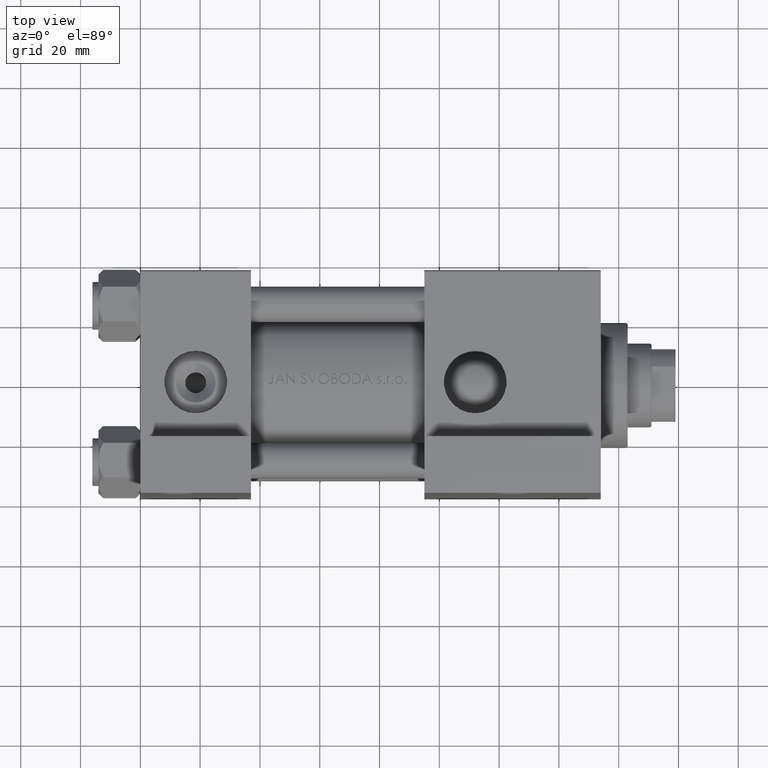
[diagram: clean part render]
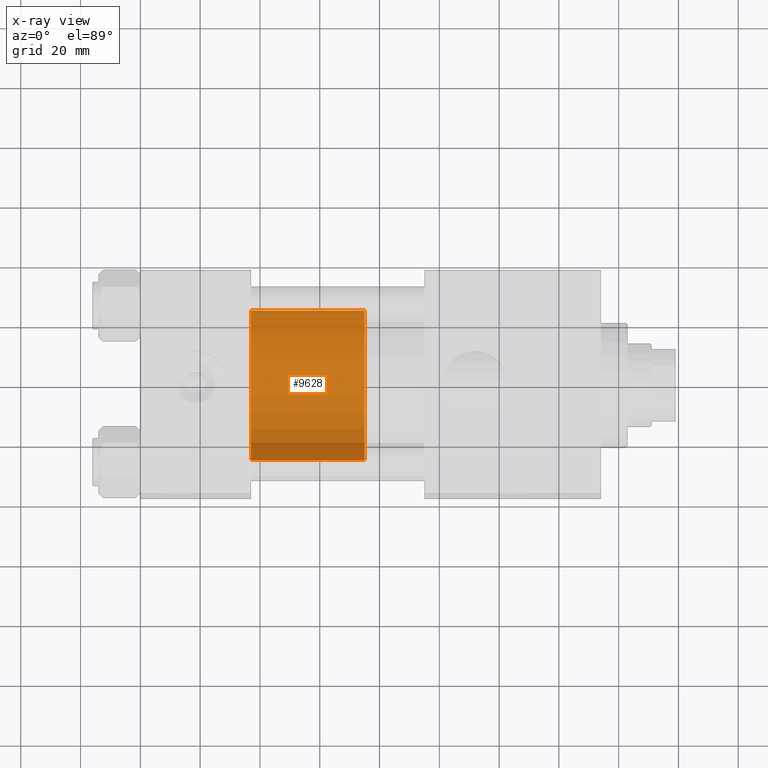
[diagram: x-ray — body ghosted, one internal face saturated and labeled with its STEP entity id]
A machine part, top view, then the same camera in x-ray: the body is ghosted and one INTERNAL B-rep face — a face not visible from any outside direction — is saturated and labeled: STEP entity #9628.
In plain terms, the highlighted cylindrical surface (partial cylindrical patch) has radius 25 mm, axis along (-1, 0, 0).
Its self-contained STEP definition (entity closure, byte-faithful):
#175 = VERTEX_POINT ( 'NONE', #599 ) ;
#599 = CARTESIAN_POINT ( 'NONE',  ( 25.00000000000000000, 3.061616997868383043E-15, 38.00000000000000000 ) ) ;
#700 = EDGE_CURVE ( 'NONE', #41236, #38161, #8587, .T. ) ;
#2032 = ORIENTED_EDGE ( 'NONE', *, *, #15272, .F. ) ;
#4381 = EDGE_CURVE ( 'NONE', #175, #38718, #22235, .T. ) ;
#5883 = ORIENTED_EDGE ( 'NONE', *, *, #43226, .T. ) ;
#6534 = CARTESIAN_POINT ( 'NONE',  ( -25.00000000000000000, 0.000000000000000000, 38.00000000000000000 ) ) ;
#7798 = DIRECTION ( 'NONE',  ( -0.000000000000000000, -0.000000000000000000, -1.000000000000000000 ) ) ;
#8587 = LINE ( 'NONE', #12213, #41179 ) ;
#8997 = DIRECTION ( 'NONE',  ( 1.000000000000000000, 0.000000000000000000, 0.000000000000000000 ) ) ;
#9628 = ADVANCED_FACE ( 'NONE', ( #20252 ), #38798, .T. ) ;
#12213 = CARTESIAN_POINT ( 'NONE',  ( -25.00000000000000000, 0.000000000000000000, 38.00000000000000000 ) ) ;
#12571 = CARTESIAN_POINT ( 'NONE',  ( 0.000000000000000000, 0.000000000000000000, 38.00000000000000000 ) ) ;
#14418 = CARTESIAN_POINT ( 'NONE',  ( 25.00000000000000000, 3.061616997868383043E-15, 0.000000000000000000 ) ) ;
#15272 = EDGE_CURVE ( 'NONE', #175, #41236, #32021, .T. ) ;
#19149 = AXIS2_PLACEMENT_3D ( 'NONE', #12571, #34720, #27251 ) ;
#19416 = DIRECTION ( 'NONE',  ( -0.000000000000000000, -0.000000000000000000, -1.000000000000000000 ) ) ;
#20252 = FACE_OUTER_BOUND ( 'NONE', #26937, .T. ) ;
#22026 = AXIS2_PLACEMENT_3D ( 'NONE', #22501, #43923, #25887 ) ;
#22235 = LINE ( 'NONE', #26564, #46612 ) ;
#22501 = CARTESIAN_POINT ( 'NONE',  ( 0.000000000000000000, 0.000000000000000000, 38.00000000000000000 ) ) ;
#25887 = DIRECTION ( 'NONE',  ( 1.000000000000000000, 0.000000000000000000, 0.000000000000000000 ) ) ;
#26564 = CARTESIAN_POINT ( 'NONE',  ( 25.00000000000000000, 3.061616997868383043E-15, 38.00000000000000000 ) ) ;
#26937 = EDGE_LOOP ( 'NONE', ( #2032, #37308, #5883, #47489 ) ) ;
#27251 = DIRECTION ( 'NONE',  ( -1.000000000000000000, 0.000000000000000000, 0.000000000000000000 ) ) ;
#28792 = CIRCLE ( 'NONE', #45656, 25.00000000000000000 ) ;
#32021 = CIRCLE ( 'NONE', #22026, 25.00000000000000000 ) ;
#34720 = DIRECTION ( 'NONE',  ( -0.000000000000000000, -0.000000000000000000, -1.000000000000000000 ) ) ;
#35967 = CARTESIAN_POINT ( 'NONE',  ( -25.00000000000000000, 0.000000000000000000, 0.000000000000000000 ) ) ;
#37308 = ORIENTED_EDGE ( 'NONE', *, *, #4381, .T. ) ;
#38161 = VERTEX_POINT ( 'NONE', #35967 ) ;
#38718 = VERTEX_POINT ( 'NONE', #14418 ) ;
#38798 = CYLINDRICAL_SURFACE ( 'NONE', #19149, 25.00000000000000000 ) ;
#41179 = VECTOR ( 'NONE', #19416, 1000.000000000000000 ) ;
#41236 = VERTEX_POINT ( 'NONE', #6534 ) ;
#41964 = DIRECTION ( 'NONE',  ( 0.000000000000000000, 0.000000000000000000, 1.000000000000000000 ) ) ;
#43226 = EDGE_CURVE ( 'NONE', #38718, #38161, #28792, .T. ) ;
#43923 = DIRECTION ( 'NONE',  ( 0.000000000000000000, 0.000000000000000000, 1.000000000000000000 ) ) ;
#45656 = AXIS2_PLACEMENT_3D ( 'NONE', #46033, #41964, #8997 ) ;
#46033 = CARTESIAN_POINT ( 'NONE',  ( 0.000000000000000000, 0.000000000000000000, 0.000000000000000000 ) ) ;
#46612 = VECTOR ( 'NONE', #7798, 1000.000000000000000 ) ;
#47489 = ORIENTED_EDGE ( 'NONE', *, *, #700, .F. ) ;